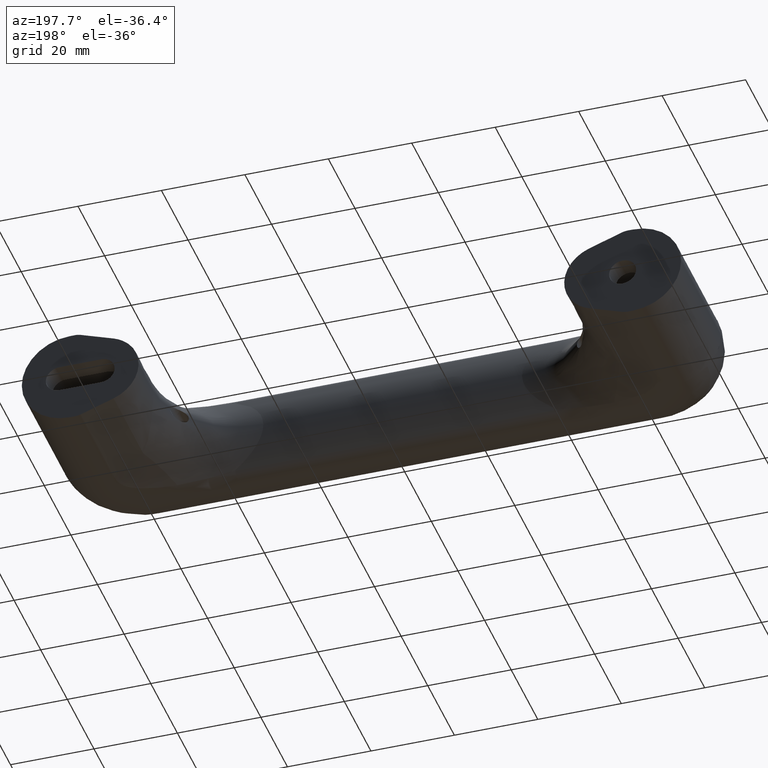
[diagram: clean part render]
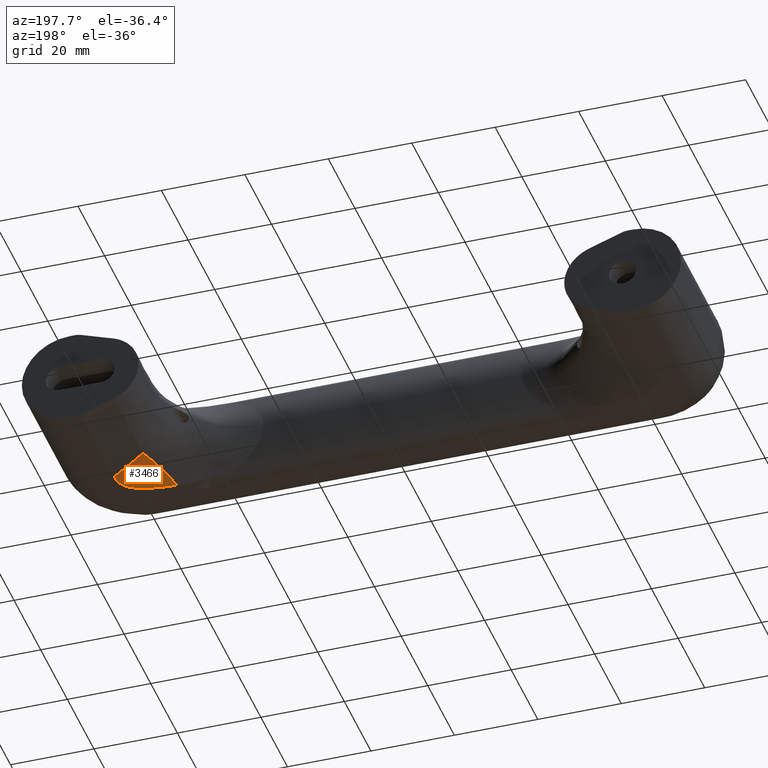
[diagram: same view with one face highlighted and labeled with its STEP entity id]
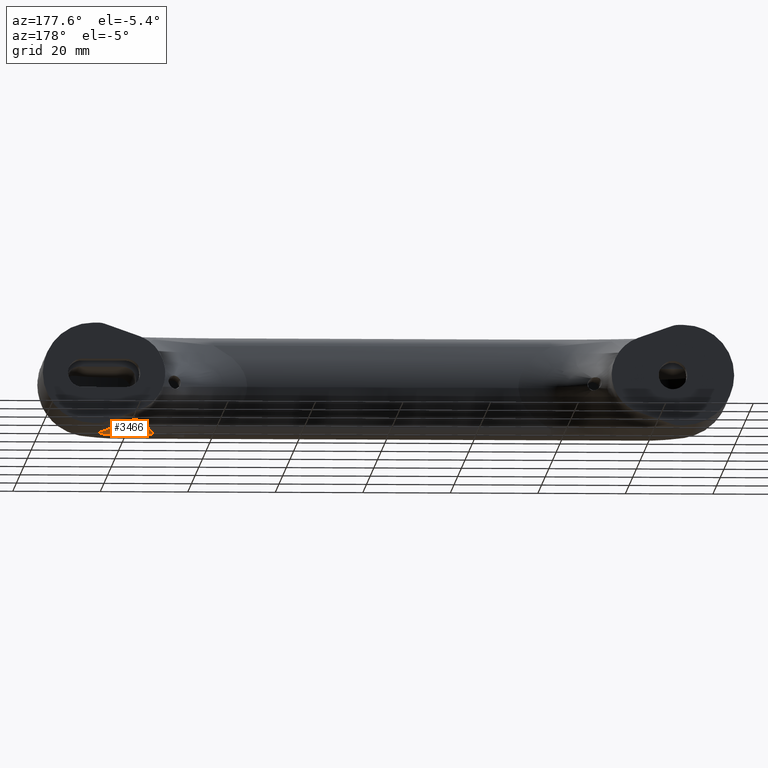
[diagram: same view with one face highlighted and labeled with its STEP entity id]
A machine part, auxiliary view. The second image highlights one B-rep face of the part: STEP entity #3466.
A second angle (auxiliary view) of the same face is appended — the face is thin or edge-on in the first view.
In plain terms, the highlighted face is a freeform B-spline surface patch.
Its self-contained STEP definition (entity closure, byte-faithful):
#915=CARTESIAN_POINT('',(64.880357608354586,-11.271261134377040,25.234505489809699));
#916=VERTEX_POINT('',#915);
#1088=CARTESIAN_POINT('',(52.330627461086813,-10.806940537372340,33.262531345766050));
#1089=VERTEX_POINT('',#1088);
#1098=CARTESIAN_POINT('',(64.880357608354586,-11.271261134377040,25.234505489809699));
#1099=CARTESIAN_POINT('',(64.891490624199520,-11.275197015334980,25.408841203355671));
#1100=CARTESIAN_POINT('',(64.896305016549746,-11.278860024150729,25.583219053640761));
#1101=CARTESIAN_POINT('',(64.892082220687954,-11.285580493432880,25.932067273247760));
#1102=CARTESIAN_POINT('',(64.882962793621346,-11.288644391722681,26.107045689933489));
#1103=CARTESIAN_POINT('',(64.833470838436284,-11.296722013606260,26.625391209591310));
#1104=CARTESIAN_POINT('',(64.771155426978041,-11.300662322046319,26.963754218655339));
#1105=CARTESIAN_POINT('',(64.629477048992882,-11.304133186625769,27.459460925114328));
#1106=CARTESIAN_POINT('',(64.574204629876931,-11.304882738826670,27.622720560527370));
#1107=CARTESIAN_POINT('',(64.478583204549423,-11.305354126130929,27.864488205180258));
#1108=CARTESIAN_POINT('',(64.444589759813823,-11.305402374669841,27.944556913276280));
#1109=CARTESIAN_POINT('',(64.372246079594689,-11.305273430637239,28.103624472050878));
#1110=CARTESIAN_POINT('',(64.333921593978019,-11.305095797673291,28.182543125048419));
#1111=CARTESIAN_POINT('',(64.213214877915334,-11.304223397479850,28.415919598609939));
#1112=CARTESIAN_POINT('',(64.125461343192512,-11.303192567907081,28.566341635108159));
#1113=CARTESIAN_POINT('',(63.937064820275502,-11.300287719192440,28.856340683933709));
#1114=CARTESIAN_POINT('',(63.836312777024617,-11.298412903980291,28.996127960697589));
#1115=CARTESIAN_POINT('',(63.515723329277577,-11.291588432389750,29.400908919234730));
#1116=CARTESIAN_POINT('',(63.277586334490323,-11.285440269715300,29.651348541887600));
#1117=CARTESIAN_POINT('',(62.888312757351791,-11.274052202051999,30.001502419359792));
#1118=CARTESIAN_POINT('',(62.754077557926117,-11.269920294616670,30.113169511097730));
#1119=CARTESIAN_POINT('',(62.547140188124779,-11.263276703608970,30.273511220135681));
#1120=CARTESIAN_POINT('',(62.477165203587226,-11.260985698843280,30.325810861544980));
#1121=CARTESIAN_POINT('',(62.335984021301023,-11.256279918414521,30.427780668283180));
#1122=CARTESIAN_POINT('',(62.264710712071420,-11.253863040414990,30.477505049947940));
#1123=CARTESIAN_POINT('',(61.905160337996961,-11.241477571675340,30.720248381226462));
#1124=CARTESIAN_POINT('',(61.607403789046479,-11.230611374766790,30.895764457166251));
#1125=CARTESIAN_POINT('',(60.996231315185767,-11.207343859647191,31.217879581379648));
#1126=CARTESIAN_POINT('',(60.682791677256859,-11.194940700671159,31.364434874120121));
#1127=CARTESIAN_POINT('',(60.203242794248780,-11.175385823713240,31.566926986088941));
#1128=CARTESIAN_POINT('',(60.041586881428337,-11.168698565267119,31.631600325012851));
#1129=CARTESIAN_POINT('',(59.717409111391689,-11.155116435561100,31.754990752247139));
#1130=CARTESIAN_POINT('',(59.554708972833339,-11.148214562535570,31.813792784621359));
#1131=CARTESIAN_POINT('',(59.064993808799393,-11.127210629972421,31.982554735426891));
#1132=CARTESIAN_POINT('',(58.736372983325637,-11.112811560867421,32.084912791859701));
#1133=CARTESIAN_POINT('',(57.745414547552073,-11.068637825270971,32.367855200326922));
#1134=CARTESIAN_POINT('',(57.078049261104510,-11.037896928173589,32.524630531446803));
#1135=CARTESIAN_POINT('',(55.734335507322839,-10.974575924674230,32.795615704850597));
#1136=CARTESIAN_POINT('',(55.057943259284592,-10.941989554382060,32.909618692536519));
#1137=CARTESIAN_POINT('',(53.698720813766137,-10.875430358683779,33.107104349981888));
#1138=CARTESIAN_POINT('',(53.015871858354842,-10.841454781608061,33.190498377536507));
#1139=CARTESIAN_POINT('',(52.330627461086813,-10.806940537372300,33.262531345766050));
#1140=B_SPLINE_CURVE_WITH_KNOTS('',3,(#1098,#1099,#1100,#1101,#1102,#1103,#1104,#1105,#1106,#1107,#1108,#1109,#1110,#1111,#1112,#1113,#1114,#1115,#1116,#1117,#1118,#1119,#1120,#1121,#1122,#1123,#1124,#1125,#1126,#1127,#1128,#1129,#1130,#1131,#1132,#1133,#1134,#1135,#1136,#1137,#1138,#1139),.UNSPECIFIED.,.F.,.U.,(4,2,2,2,2,2,2,2,2,2,2,2,2,2,2,2,2,2,2,2,4),(0.0,0.031250000000001,0.062500000000002,0.125000000000004,0.156250000000006,0.171875000000007,0.187500000000007,0.218750000000009,0.250000000000010,0.312500000000013,0.343750000000014,0.359375000000014,0.375000000000014,0.437500000000012,0.500000000000009,0.531250000000008,0.562500000000008,0.625000000000007,0.750000000000004,0.875000000000002,1.0),.UNSPECIFIED.);
#1141=EDGE_CURVE('',#916,#1089,#1140,.T.);
#3413=CARTESIAN_POINT('',(52.014851495564493,-11.092767582399389,33.728407434563344));
#3414=CARTESIAN_POINT('',(52.030162698020284,-11.096433886979279,33.731267063703349));
#3415=CARTESIAN_POINT('',(52.045473493248707,-11.100100094047592,33.734126616786675));
#3416=CARTESIAN_POINT('',(55.138997456860125,-11.840851913413413,34.311895168747519));
#3417=CARTESIAN_POINT('',(57.963969055413386,-12.519143742724490,34.921538026618641));
#3418=CARTESIAN_POINT('',(60.540202741171136,-13.139161315638535,35.552871608598075));
#3419=CARTESIAN_POINT('',(54.966148934803734,-7.766268170535229,28.614233548749112));
#3420=CARTESIAN_POINT('',(54.981329894001824,-7.771635130202639,28.617906998361391));
#3421=CARTESIAN_POINT('',(54.996509954685216,-7.777001772216070,28.621580230553402));
#3422=CARTESIAN_POINT('',(58.053504210216289,-8.857748031978547,29.361303868316316));
#3423=CARTESIAN_POINT('',(60.846527258317145,-9.845171939504445,30.149419268160244));
#3424=CARTESIAN_POINT('',(63.394464706556519,-10.745950167481658,30.970335262245040));
#3425=CARTESIAN_POINT('',(56.963021508908689,-8.472226906944563,22.144296189949845));
#3426=CARTESIAN_POINT('',(56.978368724833878,-8.477652643848526,22.149636683144298));
#3427=CARTESIAN_POINT('',(56.993715944850678,-8.483078382199006,22.154977177762547));
#3428=CARTESIAN_POINT('',(60.103079578350048,-9.582338931887611,23.236967253665188));
#3429=CARTESIAN_POINT('',(62.941810948530957,-10.585922228735152,24.351903729108123));
#3430=CARTESIAN_POINT('',(65.530267266321729,-11.501025204818488,25.487437144077230));
#3431=CARTESIAN_POINT('',(56.971969738541581,-8.475390394172869,22.115303611280716));
#3432=CARTESIAN_POINT('',(56.987317966715537,-8.480816488939944,22.120650709154681));
#3433=CARTESIAN_POINT('',(57.002666203070667,-8.486242586599326,22.125997809878825));
#3434=CARTESIAN_POINT('',(60.112320091519905,-9.585605750887043,23.209355674201220));
#3435=CARTESIAN_POINT('',(62.951308741360727,-10.589280004495336,24.325623945719158));
#3436=CARTESIAN_POINT('',(65.539995922269028,-11.504464598230141,25.462462349875413));
#3444=(BOUNDED_SURFACE()B_SPLINE_SURFACE(3,2,((#3413,#3419,#3425,#3431),(#3414,#3420,#3426,#3432),(#3415,#3421,#3427,#3433),(#3416,#3422,#3428,#3434),(#3417,#3423,#3429,#3435),(#3418,#3424,#3430,#3436)),.UNSPECIFIED.,.F.,.F.,.U.)B_SPLINE_SURFACE_WITH_KNOTS((4,2,4),(3,1,3),(0.0,0.051404502128662,10.414325947679110),(4.022596811938286,17.232877731323239,17.296747527724989),.UNSPECIFIED.)GEOMETRIC_REPRESENTATION_ITEM()RATIONAL_B_SPLINE_SURFACE(((0.968221871429486,0.931930959378446,1.000329096034775,1.000658199956829),(0.968234747522565,0.931958540087013,1.000328962689252,1.000657933262587),(0.968247623615645,0.931986120795579,1.000328829343729,1.000657666568345),(0.970856263417823,0.937573850993958,1.000301814127488,1.000603635488404),(0.973207365946947,0.942609934009522,1.000277465981311,1.000554938612509),(0.975333031952654,0.947163129940152,1.000255452468080,1.000510911058461)))REPRESENTATION_ITEM('')SURFACE());
#3445=CARTESIAN_POINT('',(57.000106220408597,-8.485337552347890,22.189308786030750));
#3446=VERTEX_POINT('',#3445);
#3447=CARTESIAN_POINT('',(64.880357608354586,-11.271261134377040,25.234505489809699));
#3448=CARTESIAN_POINT('',(62.287063324183592,-10.354447780876070,24.125362412617680));
#3449=CARTESIAN_POINT('',(59.658299227367174,-9.425094702100612,23.109518914424442));
#3450=CARTESIAN_POINT('',(57.000106220408597,-8.485337552347890,22.189308786030750));
#3451=B_SPLINE_CURVE_WITH_KNOTS('',3,(#3447,#3448,#3449,#3450),.UNSPECIFIED.,.F.,.U.,(4,4),(5.239542E-011,8.897381648452114),.UNSPECIFIED.);
#3452=EDGE_CURVE('',#916,#3446,#3451,.T.);
#3453=ORIENTED_EDGE('',*,*,#3452,.F.);
#3454=ORIENTED_EDGE('',*,*,#1141,.T.);
#3455=CARTESIAN_POINT('',(52.330627461086813,-10.806940537372340,33.262531345766050));
#3456=CARTESIAN_POINT('',(53.087803910898273,-9.993166382702354,31.911778011691499));
#3457=CARTESIAN_POINT('',(54.365429779050352,-8.910320254804399,29.337316937292510));
#3458=CARTESIAN_POINT('',(55.906816429263770,-8.309312666664752,25.513879806394499));
#3459=CARTESIAN_POINT('',(56.676765105205938,-8.370963606299531,23.235936160300081));
#3460=CARTESIAN_POINT('',(57.000106220408597,-8.485337552347890,22.189308786030750));
#3461=B_SPLINE_CURVE_WITH_KNOTS('',3,(#3455,#3456,#3457,#3458,#3459,#3460),.UNSPECIFIED.,.F.,.U.,(4,1,1,4),(0.000000018244478,5.247823671715790,9.135090998619287,12.439273933881079),.UNSPECIFIED.);
#3462=EDGE_CURVE('',#1089,#3446,#3461,.T.);
#3463=ORIENTED_EDGE('',*,*,#3462,.T.);
#3464=EDGE_LOOP('',(#3453,#3454,#3463));
#3465=FACE_OUTER_BOUND('',#3464,.T.);
#3466=ADVANCED_FACE('',(#3465),#3444,.F.);